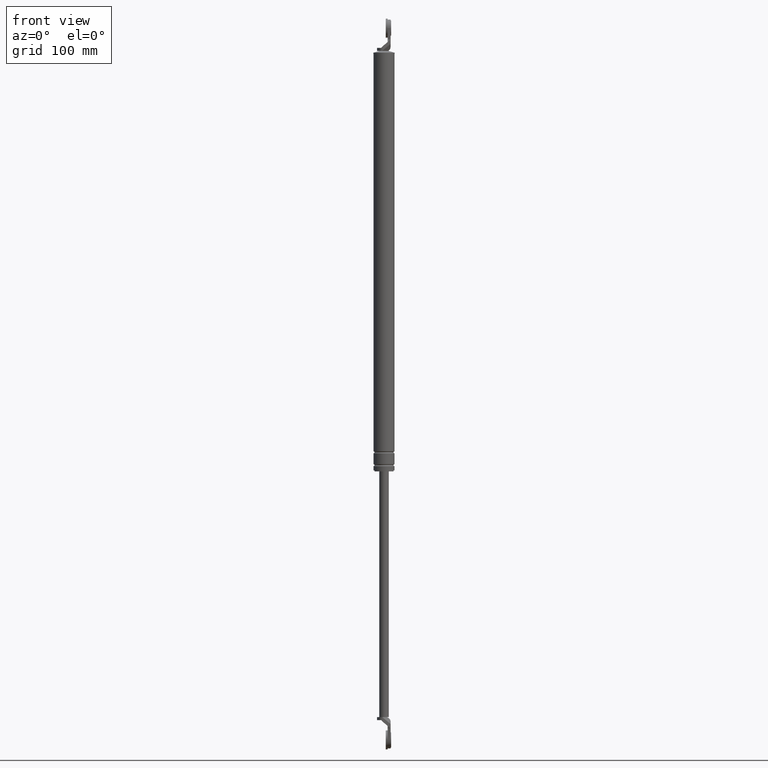
[diagram: clean part render]
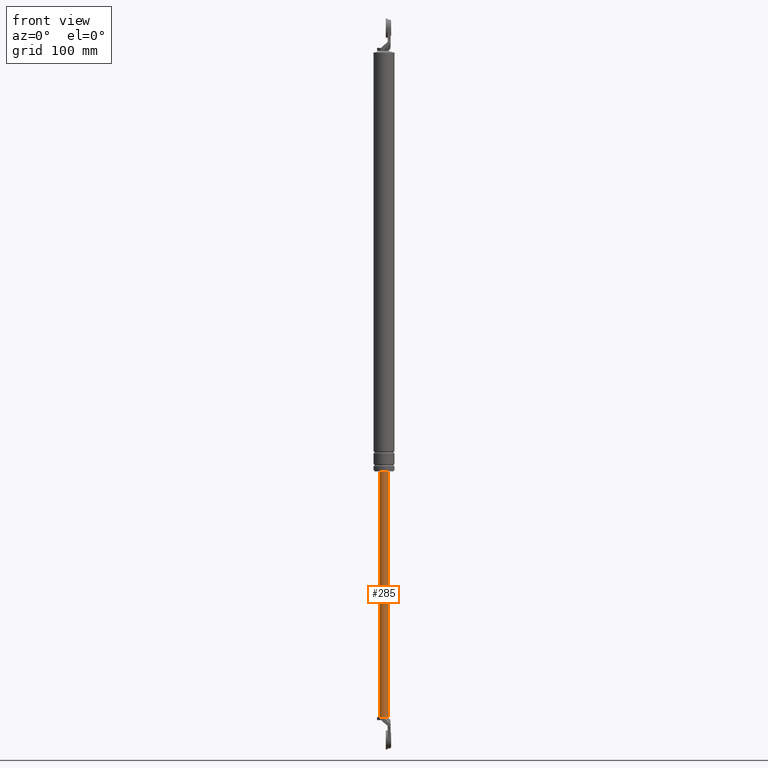
[diagram: same view with one face highlighted and labeled with its STEP entity id]
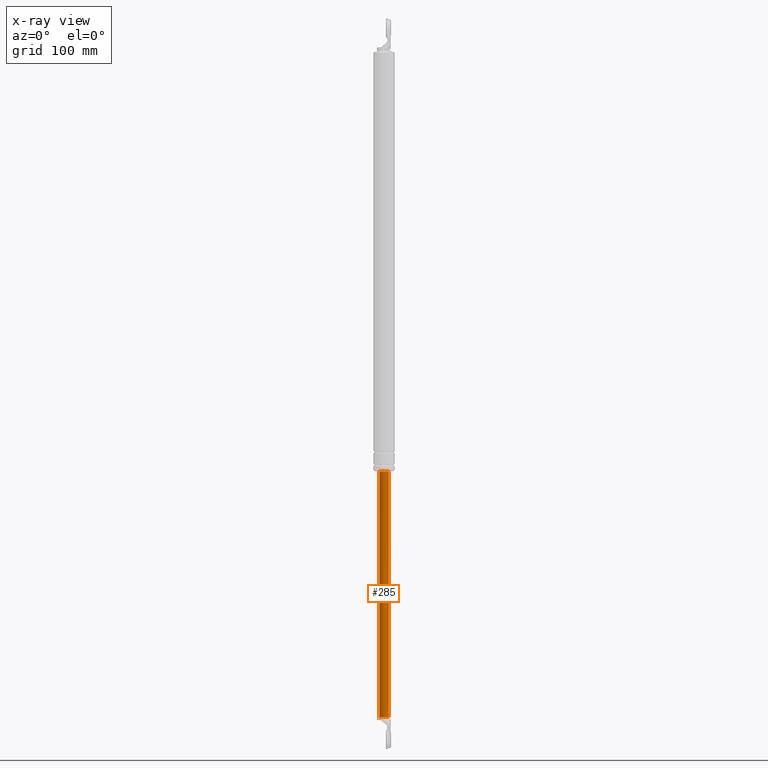
[diagram: x-ray of the same camera — body ghosted, the highlighted face saturated]
A machine part, front view. The second image highlights one B-rep face of the part: STEP entity #285.
The next image is the same camera in x-ray: the body ghosted, the highlighted face saturated — about 0% of this face is hidden behind the body in this view.
In plain terms, the highlighted cylindrical surface (edge-blend (fillet) strip) has radius 5 mm, axis along (0, 0, 1).
Its self-contained STEP definition (entity closure, byte-faithful):
#285=ADVANCED_FACE('',(#1108),#1107,.T.);
#1107=CYLINDRICAL_SURFACE('',#1762,5.00000000000E+000);
#1108=FACE_OUTER_BOUND('',#1763,.T.);
#1759=CARTESIAN_POINT('',(0.00000000000E+000,3.58204186421E-014,0.00000000000E+000));
#1760=DIRECTION('',(-0.00000000000E+000,-0.00000000000E+000,1.00000000000E+000));
#1761=DIRECTION('',(1.00000000000E+000,0.00000000000E+000,0.00000000000E+000));
#1762=AXIS2_PLACEMENT_3D('',#1759,#1760,#1761);
#1763=EDGE_LOOP('',(#2153,#2154,#2155,#2156,#2157));
#2153=ORIENTED_EDGE('',*,*,#2346,.F.);
#2154=ORIENTED_EDGE('',*,*,#2338,.F.);
#2155=ORIENTED_EDGE('',*,*,#2353,.T.);
#2156=ORIENTED_EDGE('',*,*,#2349,.F.);
#2157=ORIENTED_EDGE('',*,*,#2354,.F.);
#2338=EDGE_CURVE('',#3549,#3542,#3556,.T.);
#2346=EDGE_CURVE('',#3542,#3606,#3607,.T.);
#2349=EDGE_CURVE('',#3625,#3626,#3627,.T.);
#2353=EDGE_CURVE('',#3549,#3626,#3651,.T.);
#2354=EDGE_CURVE('',#3606,#3625,#3657,.T.);
#3542=VERTEX_POINT('',#4388);
#3549=VERTEX_POINT('',#4392);
#3556=CIRCLE('',#4400,5.00000000000E+000);
#3606=VERTEX_POINT('',#4427);
#3607=CIRCLE('',#4431,5.00000000000E+000);
#3625=VERTEX_POINT('',#4439);
#3626=VERTEX_POINT('',#4440);
#3627=CIRCLE('',#4444,5.00000000000E+000);
#3651=(BOUNDED_CURVE() B_SPLINE_CURVE(1,(#4453,#4454),.UNSPECIFIED.,.F.,.F.) B_SPLINE_CURVE_WITH_KNOTS((2,2),(3.58422939668E-002,9.64157706128E-001),.UNSPECIFIED.) CURVE() GEOMETRIC_REPRESENTATION_ITEM() RATIONAL_B_SPLINE_CURVE((1.00000000000E+000,1.00000000000E+000)) REPRESENTATION_ITEM('') );
#3657=(BOUNDED_CURVE() B_SPLINE_CURVE(1,(#4455,#4456),.UNSPECIFIED.,.F.,.F.) B_SPLINE_CURVE_WITH_KNOTS((2,2),(3.58422939068E-002,9.64157706093E-001),.UNSPECIFIED.) CURVE() GEOMETRIC_REPRESENTATION_ITEM() RATIONAL_B_SPLINE_CURVE((7.50000000000E-001,7.50000000000E-001)) REPRESENTATION_ITEM('') );
#4388=CARTESIAN_POINT('',(2.00000000000E+000,-4.58257569496E+000,-6.13000015000E+002));
#4392=CARTESIAN_POINT('',(5.00000000000E+000,1.01515834226E-011,-6.13000015000E+002));
#4397=CARTESIAN_POINT('',(0.00000000000E+000,3.58204186421E-014,-6.13000015000E+002));
#4398=DIRECTION('',(0.00000000000E+000,0.00000000000E+000,-1.00000000000E+000));
#4399=DIRECTION('',(4.00000000000E-001,9.16515138991E-001,0.00000000000E+000));
#4400=AXIS2_PLACEMENT_3D('',#4397,#4398,#4399);
#4427=CARTESIAN_POINT('',(-5.00000000000E+000,8.97827334275E-007,-6.13000015000E+002));
#4428=CARTESIAN_POINT('',(0.00000000000E+000,3.58204186421E-014,-6.13000015000E+002));
#4429=DIRECTION('',(0.00000000000E+000,0.00000000000E+000,-1.00000000000E+000));
#4430=DIRECTION('',(1.00000000000E+000,-0.00000000000E+000,-0.00000000000E+000));
#4431=AXIS2_PLACEMENT_3D('',#4428,#4429,#4430);
#4439=CARTESIAN_POINT('',(-5.00000000000E+000,3.58204186421E-014,-3.54000015000E+002));
#4440=CARTESIAN_POINT('',(5.00000000000E+000,3.61192557345E-014,-3.54000015000E+002));
#4441=CARTESIAN_POINT('',(0.00000000000E+000,3.58204186421E-014,-3.54000015000E+002));
#4442=DIRECTION('',(0.00000000000E+000,0.00000000000E+000,1.00000000000E+000));
#4443=DIRECTION('',(-1.00000000000E+000,-1.22460635382E-016,0.00000000000E+000));
#4444=AXIS2_PLACEMENT_3D('',#4441,#4442,#4443);
#4453=CARTESIAN_POINT('',(5.00000000000E+000,3.58204186421E-014,-6.13000014983E+002));
#4454=CARTESIAN_POINT('',(5.00000000000E+000,3.58204186421E-014,-3.54000014990E+002));
#4455=CARTESIAN_POINT('',(-5.00000000000E+000,3.55271367880E-014,-6.13000015000E+002));
#4456=CARTESIAN_POINT('',(-5.00000000000E+000,3.55271367880E-014,-3.54000015000E+002));